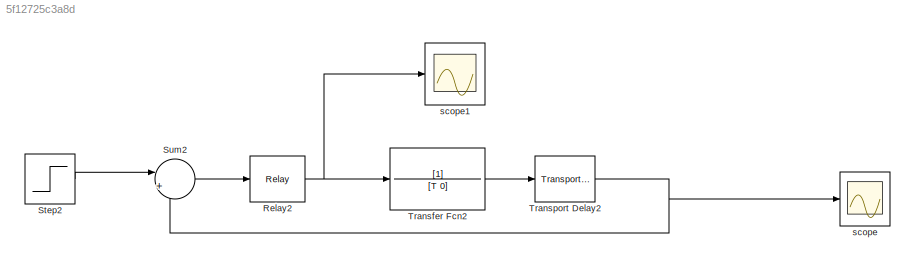
MODEL slx_5f12725c3a8d
KIND model
CONFIG AbsTol = auto
CONFIG EnableMultiTasking = off
CONFIG FixedStep = auto
CONFIG MaxStep = auto
CONFIG MinStep = auto
CONFIG RelTol = 1e-3
CONFIG SampleTimeConstraint = Unconstrained
CONFIG SolverName = VariableStepAuto
CONFIG StartTime = 0.0
CONFIG StopTime = 300.0
BLOCK [Relay] Relay2
  OffOutputValue = -1
  OffSwitchValue = -h
  OnSwitchValue = h
BLOCK [Step] Step2
  After = SP
  SampleTime = 0
BLOCK [Sum] Sum2
  Inputs = |+-
BLOCK [TransferFcn] Transfer Fcn2
  Denominator = [T 0]
BLOCK [TransportDelay] Transport Delay2
  DelayTime = tau
  PadeOrder = 10
BLOCK [Scope] scope
  Floating = off
  NumInputPorts = 1
  ScopeSpecificationString = Simulink.scopes.TimeScopeBlockCfg('CurrentConfiguration', extmgr.ConfigurationSet(extmgr.Configuration('Core','General UI',true),extmgr.Configuration('Core','Source UI',true),extmgr.Configuration('Sources','WiredSimulink',true,'DataLoggingVariableName','y','DataLogging',true,'DataLoggingSaveFormat','StructureWithTime'),extmgr.Configuration('Visuals','Time Domain',true,'SerializedDisplays',{struct(...<+1544ch>
BLOCK [Scope] scope1
  Floating = off
  NumInputPorts = 1
  ScopeSpecificationString = Simulink.scopes.TimeScopeBlockCfg('CurrentConfiguration', extmgr.ConfigurationSet(extmgr.Configuration('Core','General UI',true),extmgr.Configuration('Core','Source UI',true),extmgr.Configuration('Sources','WiredSimulink',true,'DataLoggingVariableName','u','DataLogging',true,'DataLoggingSaveFormat','StructureWithTime'),extmgr.Configuration('Visuals','Time Domain',true,'SerializedDisplays',{struct(...<+1528ch>
NET Relay2:1 -> Transfer Fcn2:1, scope1:1
LINE Step2:1 -> Sum2:1
LINE Sum2:1 -> Relay2:1
LINE Transfer Fcn2:1 -> Transport Delay2:1
NET Transport Delay2:1 -> Sum2:2, scope:1
note: NET lines group one-source signal fan-out (src -> all destinations, sorted); 1:1 wires keep LINE
